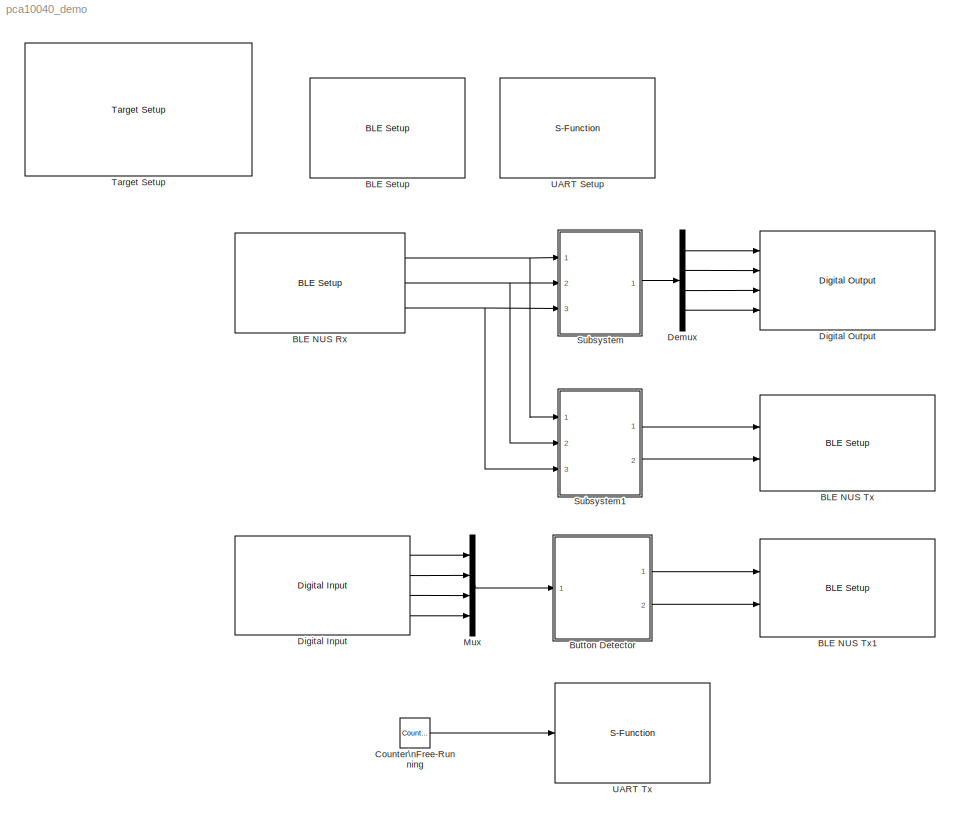
MODEL pca10040_demo
KIND model
CONFIG PreLoadFcn = waijung.modelPreload; % Required for working with Waijung Blockset. Do not remove.
BLOCK [Reference] BLE NUS Rx  REF=nrf5_ble_lib/BLE Setup
  Ports = [0, 3]
  SourceBlock = nrf5_ble_lib/BLE Setup
  SourceType = nrf5_ble
  advanceoptions = on
  asciiformat = 'led%d=%d'
  binheader = '7E 7E'
  binterminator = '03 03'
  ble_secure_dfu = off
  ble_secure_dfu_public_key = '123bd49bffb387f1de3dc8dc1fc8fcce952739d331fafeb7dd16837154ace7994a0a05af319f68e2a07478477b8db746643d6dd7f5f191193738984ffcd2b963'
  bleprofile = NUS
  blockid = BLENUSRx
  cinputportlabel = In1,In2
  compat = 0
  conf = Rx
  coutputportlabel = Out1,Out2
  devicename = 'Nordic_UART'
  enablecustomportlabel = off
  inputportlabel = {}
  inputporttype = []
  inputportwidth = []
  optionstring1 = [\"64\",\"64\",\"Non-Blocking\",\"Ascii\",\"led%d=%d\",\"0x0D, 0x0A\",\"2\",\"NUS\",\"Nordic_UART\",\"1\",\"0\"]
  optionstring2 = [\"int32_t\",\"int32_t\"]
  optionstring3 = [\"0x7E\",\"0x7E\"]
  optionstring4 = [\"0x3\",\"0x3\"]
  outputportlabel = {'READY' 'int32' 'int32'}
  outputporttype = [3 6 6]
  outputportwidth = []
  packetmode = Ascii
  portpinstr = 0
  porttype_double = 0
  porttype_int16 = 0
  porttype_int32 = 0
  porttype_int8 = 0
  porttype_single = 0
  porttype_uint16 = 0
  porttype_uint32 = 2
  porttype_uint8 = 3
  rx_asciiterminator = CRLF (0x0D 0x0A - \"<path>")
  rxbuffersize = 64
  sampletime = -1
  storagename = <empty>
  transfer = Non-Blocking
  tx_asciiterminator = None
  txbuffersize = 64
BLOCK [Reference] BLE NUS Tx  REF=nrf5_ble_lib/BLE Setup
  Ports = [2]
  SourceBlock = nrf5_ble_lib/BLE Setup
  SourceType = nrf5_ble
  advanceoptions = on
  asciiformat = 'led%d=%d'
  binheader = '7E 7E'
  binterminator = '03 03'
  ble_secure_dfu = off
  ble_secure_dfu_public_key = '123bd49bffb387f1de3dc8dc1fc8fcce952739d331fafeb7dd16837154ace7994a0a05af319f68e2a07478477b8db746643d6dd7f5f191193738984ffcd2b963'
  bleprofile = NUS
  blockid = BLENUSTx
  cinputportlabel = In1,In2
  compat = 0
  conf = Tx
  coutputportlabel = Out1,Out2
  devicename = 'Nordic_UART'
  enablecustomportlabel = off
  inputportlabel = {'Len','Data'}
  inputporttype = [5 3]
  inputportwidth = [1 -1]
  optionstring1 = [\"64\",\"64\",\"Blocking\",\"Raw Buffer\",\"led%d=%d\",\"\",\"\",\"NUS\",\"Nordic_UART\",\"1\",\"0\"]
  optionstring2 = [\"int32_t\",\"int32_t\"]
  optionstring3 = [\"0x7E\",\"0x7E\"]
  optionstring4 = [\"0x3\",\"0x3\"]
  outputportlabel = {}
  outputporttype = []
  outputportwidth = []
  packetmode = Raw Buffer
  portpinstr = 0
  porttype_double = 0
  porttype_int16 = 0
  porttype_int32 = 0
  porttype_int8 = 0
  porttype_single = 0
  porttype_uint16 = 0
  porttype_uint32 = 2
  porttype_uint8 = 3
  rx_asciiterminator = CRLF (0x0D 0x0A - \"<path>")
  rxbuffersize = 64
  sampletime = -1
  storagename = <empty>
  transfer = Blocking
  tx_asciiterminator = None
  txbuffersize = 64
BLOCK [Reference] BLE NUS Tx1  REF=nrf5_ble_lib/BLE Setup
  Ports = [2]
  SourceBlock = nrf5_ble_lib/BLE Setup
  SourceType = nrf5_ble
  advanceoptions = on
  asciiformat = 'Btn:%u,%u,%u,%u'
  binheader = '7E 7E'
  binterminator = '03 03'
  ble_secure_dfu = off
  ble_secure_dfu_public_key = '123bd49bffb387f1de3dc8dc1fc8fcce952739d331fafeb7dd16837154ace7994a0a05af319f68e2a07478477b8db746643d6dd7f5f191193738984ffcd2b963'
  bleprofile = NUS
  blockid = BLENUSTx1
  cinputportlabel = In1,In2
  compat = 0
  conf = Tx
  coutputportlabel = Out1,Out2
  devicename = 'Nordic_UART'
  enablecustomportlabel = off
  inputportlabel = {'Len','Data'}
  inputporttype = [5 3]
  inputportwidth = [1 -1]
  optionstring1 = [\"64\",\"64\",\"Blocking\",\"Raw Buffer\",\"Btn:%u,%u,%u,%u\",\"\",\"\",\"NUS\",\"Nordic_UART\",\"1\",\"0\"]
  optionstring2 = [\"uint32_t\",\"uint32_t\",\"uint32_t\",\"uint32_t\"]
  optionstring3 = [\"0x7E\",\"0x7E\"]
  optionstring4 = [\"0x3\",\"0x3\"]
  outputportlabel = {}
  outputporttype = []
  outputportwidth = []
  packetmode = Raw Buffer
  portpinstr = 0
  porttype_double = 0
  porttype_int16 = 0
  porttype_int32 = 0
  porttype_int8 = 0
  porttype_single = 0
  porttype_uint16 = 0
  porttype_uint32 = 2
  porttype_uint8 = 3
  rx_asciiterminator = CRLF (0x0D 0x0A - \"<path>")
  rxbuffersize = 64
  sampletime = -1
  storagename = <empty>
  transfer = Blocking
  tx_asciiterminator = None
  txbuffersize = 64
BLOCK [Reference] BLE Setup  REF=nrf5_ble_lib/BLE Setup
  Ports = []
  SourceBlock = nrf5_ble_lib/BLE Setup
  SourceType = nrf5_ble
  advanceoptions = on
  asciiformat = 'Value=%1.2f'
  binheader = '7E 7E'
  binterminator = '03 03'
  ble_secure_dfu = off
  ble_secure_dfu_public_key = '123bd49bffb387f1de3dc8dc1fc8fcce952739d331fafeb7dd16837154ace7994a0a05af319f68e2a07478477b8db746643d6dd7f5f191193738984ffcd2b963'
  bleprofile = NUS
  blockid = BLESetup
  cinputportlabel = In1,In2
  compat = 0
  conf = Setup
  coutputportlabel = Out1,Out2
  devicename = 'aMG_BLE Demo'
  enablecustomportlabel = off
  inputportlabel = {}
  inputporttype = []
  inputportwidth = []
  optionstring1 = [\"64\",\"64\",\"Blocking\",\"Ascii\",\"Value=%1.2f\",\"\",\"\",\"NUS\",\"aMG_BLE Demo\",\"1\",\"0\"]
  optionstring2 = [\"float\"]
  optionstring3 = [\"0x7E\",\"0x7E\"]
  optionstring4 = [\"0x3\",\"0x3\"]
  outputportlabel = {}
  outputporttype = []
  outputportwidth = []
  packetmode = Ascii
  portpinstr = 0
  porttype_double = 0
  porttype_int16 = 0
  porttype_int32 = 0
  porttype_int8 = 0
  porttype_single = 0
  porttype_uint16 = 0
  porttype_uint32 = 2
  porttype_uint8 = 3
  rx_asciiterminator = CRLF (0x0D 0x0A - \"<path>")
  rxbuffersize = 64
  sampletime = -1
  storagename = <empty>
  transfer = Blocking
  tx_asciiterminator = None
  txbuffersize = 64
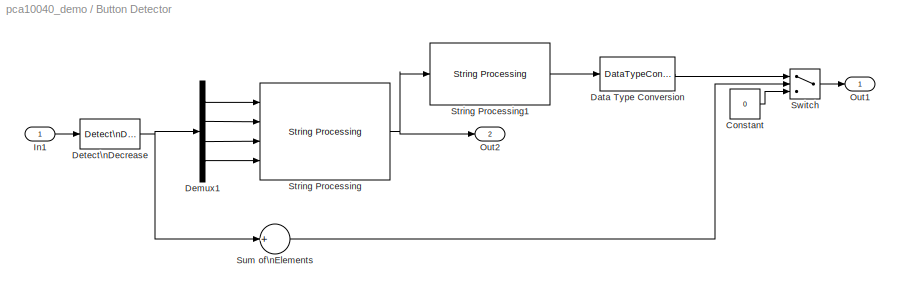
BLOCK [SubSystem] Button Detector
  FunctionWithSeparateData = off
  MaskHideContents = off
  MinAlgLoopOccurrences = off
  Opaque = off
  Ports = [1, 2]
  PropExecContextOutsideSubsystem = off
  RTWSystemCode = Auto
  RequestExecContextInheritance = off
BLOCK [Constant] Button Detector/Constant
  OutDataType = fixdt(1, 16)
  OutDataTypeMode = uint16
  OutDataTypeStr = uint16
  OutScaling = 2^0
  SampleTime = -1
  Value = 0
BLOCK [DataTypeConversion] Button Detector/Data Type Conversion
  OutDataType = fixdt(1, 16)
  OutScaling = 2^0
  RndMeth = Floor
  SaturateOnIntegerOverflow = off
BLOCK [Demux] Button Detector/Demux1
  DisplayOption = bar
  Ports = [1, 4]
BLOCK [Reference] Button Detector/Detect\nDecrease  REF=simulink/Logic and Bit\nOperations/Detect\nDecrease
  FunctionWithSeparateData = off
  Ports = [1, 1]
  RTWMemSecDataConstants = Inherit from model
  RTWMemSecDataInternal = Inherit from model
  RTWMemSecDataParameters = Inherit from model
  RTWMemSecFuncExecute = Inherit from model
  RTWMemSecFuncInitTerm = Inherit from model
  ShowPortLabels = FromPortIcon
  SourceBlock = simulink/Logic and Bit\nOperations/Detect\nDecrease
  SourceType = Detect Decrease
  SystemSampleTime = -1
  vinit = 0.0
BLOCK [Inport] Button Detector/In1
  IconDisplay = Port number
BLOCK [Outport] Button Detector/Out1
  IconDisplay = Port number
BLOCK [Outport] Button Detector/Out2
  IconDisplay = Port number
  Port = 2
BLOCK [Reference] Button Detector/String Processing  REF=waijung_string_manipulate/String Processing
  Ports = [4, 1]
  SourceBlock = waijung_string_manipulate/String Processing
  SourceType = waijung_string_processing_callback
  begindelimiter = ''
  blockid = ButtonDetectorStringProcessing
  buffersize = 64
  compat = 0
  conf = processing
  datatypestring = [\"uint32_t\",\"uint32_t\",\"uint32_t\",\"uint32_t\"]
  enablestatus = off
  enddelimiter = ''
  inputportlabel = {'%u','%u','%u','%u'}
  inputporttype = [-1 -1 -1 -1]
  inputportwidth = [1 1 1 1]
  optionstring = []
  outputportlabel = {'Output'}
  outputporttype = [3]
  outputportwidth = [64]
  portpinstr = 0
  sampletime = -1
  stringformat = 'Btn:%u,%u,%u,%u'
  stringfunction = sprintf
BLOCK [Reference] Button Detector/String Processing1  REF=waijung_string_manipulate/String Processing
  Ports = [1, 1]
  SourceBlock = waijung_string_manipulate/String Processing
  SourceType = waijung_string_processing_callback
  begindelimiter = ''
  blockid = ButtonDetectorStringProcessing1
  buffersize = 64
  compat = 0
  conf = processing
  datatypestring = []
  enablestatus = off
  enddelimiter = ''
  inputportlabel = {'Input'}
  inputporttype = [3]
  inputportwidth = [-1]
  optionstring = []
  outputportlabel = {'Length'}
  outputporttype = [7]
  outputportwidth = [1]
  portpinstr = 0
  sampletime = -1
  stringformat = 'Btn:%u,%u,%u,%u'
  stringfunction = strlen
BLOCK [Sum] Button Detector/Sum of\nElements
  InputSameDT = off
  Inputs = +
  OutDataType = fixdt(1, 16)
  OutDataTypeMode = Inherit via internal rule
  OutDataTypeStr = Inherit: Inherit via internal rule
  OutScaling = 2^-10
  Ports = [1, 1]
  SaturateOnIntegerOverflow = off
BLOCK [Switch] Button Detector/Switch
  Criteria = u2 ~= 0
  InputSameDT = off
  OutDataType = fixdt(1, 16)
  OutScaling = 2^0
  SaturateOnIntegerOverflow = off
  Threshold = 4
BLOCK [Reference] Counter\nFree-Running  REF=simulink/Sources/Counter\nFree-Running
  FunctionWithSeparateData = off
  NumBits = 32
  Ports = [0, 1]
  RTWMemSecDataConstants = Inherit from model
  RTWMemSecDataInternal = Inherit from model
  RTWMemSecDataParameters = Inherit from model
  RTWMemSecFuncExecute = Inherit from model
  RTWMemSecFuncInitTerm = Inherit from model
  ShowPortLabels = FromPortIcon
  SourceBlock = simulink/Sources/Counter\nFree-Running
  SourceType = Counter Free-Running
  SystemSampleTime = -1
  tsamp = -1
BLOCK [Demux] Demux
  DisplayOption = bar
  Ports = [1, 4]
BLOCK [Reference] Digital Input  REF=nrf5_io_lib/Digital Input
  Ports = [0, 4]
  SourceBlock = nrf5_io_lib/Digital Input
  SourceType = nrf5_digital_io
  blockid = DigitalInput
  cinputportlabel = In1,In2
  compat = 0
  conf = input
  coutputportlabel = Out1,Out2
  drivemode = High
  enablecustomportlabel = off
  inputpintype = Pull Up
  inputportlabel = {}
  inputporttype = []
  inputportwidth = []
  optionstring = [\"0\",\"High\",\"PULLUP\",\"H0D1\",\"dummy\",\"dummy\",\"dummy\",\"dummy\",\"dummy\",\"dummy\",\"off\",\"off\",\"off\",\"off\",\"off\",\"off\",\"off\",\"off\",\"off\",\"off\",\"off\",\"off\",\"off\",\"on\",\"on\",\"on\",\"on\",\"off\",\"off\",\"off\",\"off\",\"off\",\"off\",\"off\",\"off\",\"off\",\"off\",\"off\",\"off\",\"off\",\"off\",\"off\"]
  outputmode = uint8
  outputpintype = Open Drain
  outputportlabel = {'P0.13','P0.14','P0.15','P0.16'}
  outputporttype = [3,3,3,3]
  outputportwidth = []
  port = 0
  portpinstr = off
  sampletime = -1
  usepin0 = off
  usepin1 = off
  usepin10 = off
  usepin11 = off
  usepin12 = off
  usepin13 = on
  usepin14 = on
  usepin15 = on
  usepin16 = on
  usepin17 = off
  usepin18 = off
  usepin19 = off
  usepin2 = off
  usepin20 = off
  usepin21 = off
  usepin22 = off
  usepin23 = off
  usepin24 = off
  usepin25 = off
  usepin26 = off
  usepin27 = off
  usepin28 = off
  usepin29 = off
  usepin3 = off
  usepin30 = off
  usepin31 = off
  usepin4 = off
  usepin5 = off
  usepin6 = off
  usepin7 = off
  usepin8 = off
  usepin9 = off
BLOCK [Reference] Digital Output  REF=nrf5_io_lib/Digital Output
  Ports = [4]
  SourceBlock = nrf5_io_lib/Digital Output
  SourceType = nrf5_digital_io
  blockid = DigitalOutput
  cinputportlabel = In1,In2
  compat = 0
  conf = output
  coutputportlabel = Out1,Out2
  drivemode = High
  enablecustomportlabel = off
  inputpintype = None
  inputportlabel = {'P0.17','P0.18','P0.19','P0.20'}
  inputporttype = [-1,-1,-1,-1]
  inputportwidth = []
  optionstring = [\"0\",\"High\",\"NOPULL\",\"H0H1\",\"dummy\",\"dummy\",\"dummy\",\"dummy\",\"dummy\",\"dummy\",\"off\",\"off\",\"off\",\"off\",\"off\",\"off\",\"off\",\"off\",\"off\",\"off\",\"off\",\"off\",\"off\",\"off\",\"off\",\"off\",\"off\",\"on\",\"on\",\"on\",\"on\",\"off\",\"off\",\"off\",\"off\",\"off\",\"off\",\"off\",\"off\",\"off\",\"off\",\"off\"]
  outputmode = uint8
  outputpintype = Push Pull
  outputportlabel = {}
  outputporttype = []
  outputportwidth = []
  port = 0
  portpinstr = off
  sampletime = -1
  usepin0 = off
  usepin1 = off
  usepin10 = off
  usepin11 = off
  usepin12 = off
  usepin13 = off
  usepin14 = off
  usepin15 = off
  usepin16 = off
  usepin17 = on
  usepin18 = on
  usepin19 = on
  usepin2 = off
  usepin20 = on
  usepin21 = off
  usepin22 = off
  usepin23 = off
  usepin24 = off
  usepin25 = off
  usepin26 = off
  usepin27 = off
  usepin28 = off
  usepin29 = off
  usepin3 = off
  usepin30 = off
  usepin31 = off
  usepin4 = off
  usepin5 = off
  usepin6 = off
  usepin7 = off
  usepin8 = off
  usepin9 = off
BLOCK [Mux] Mux
  DisplayOption = bar
  Ports = [4, 1]
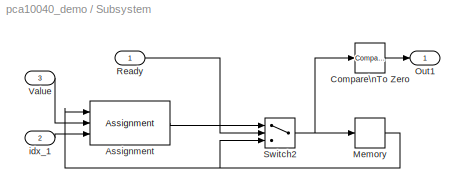
BLOCK [SubSystem] Subsystem
  FunctionWithSeparateData = off
  MaskHideContents = off
  MinAlgLoopOccurrences = off
  Opaque = off
  Ports = [3, 1]
  PropExecContextOutsideSubsystem = off
  RTWSystemCode = Auto
  RequestExecContextInheritance = off
BLOCK [Assignment] Subsystem/Assignment
  IndexOptions = Index vector (port)
  Indices = 1
  OutputSizes = 1
  Ports = [3, 1]
BLOCK [Reference] Subsystem/Compare\nTo Zero  REF=simulink/Logic and Bit\nOperations/Compare\nTo Zero
  FunctionWithSeparateData = off
  LogicOutDataTypeMode = uint8
  Ports = [1, 1]
  RTWMemSecDataConstants = Inherit from model
  RTWMemSecDataInternal = Inherit from model
  RTWMemSecDataParameters = Inherit from model
  RTWMemSecFuncExecute = Inherit from model
  RTWMemSecFuncInitTerm = Inherit from model
  ShowPortLabels = FromPortIcon
  SourceBlock = simulink/Logic and Bit\nOperations/Compare\nTo Zero
  SourceType = Compare To Zero
  SystemSampleTime = -1
  ZeroCross = off
  relop = ==
BLOCK [Memory] Subsystem/Memory
  InheritSampleTime = on
  LinearizeAsDelay = on
  LinearizeMemory = on
  X0 = [0 0 0 0]
BLOCK [Outport] Subsystem/Out1
  IconDisplay = Port number
BLOCK [Inport] Subsystem/Ready
  IconDisplay = Port number
BLOCK [Switch] Subsystem/Switch2
  Criteria = u2 ~= 0
  InputSameDT = off
  OutDataType = fixdt(1, 16)
  OutScaling = 2^0
  SaturateOnIntegerOverflow = off
BLOCK [Inport] Subsystem/Value
  IconDisplay = Port number
  Port = 3
BLOCK [Inport] Subsystem/idx_1
  IconDisplay = Port number
  Port = 2
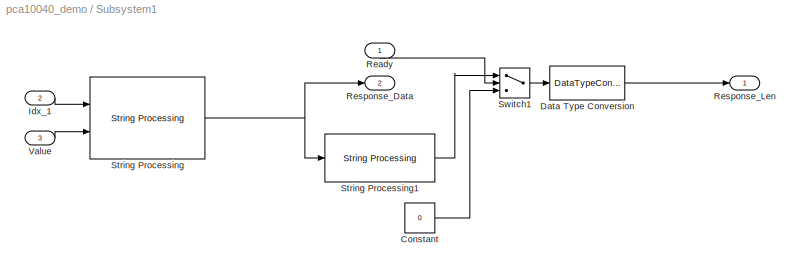
BLOCK [SubSystem] Subsystem1
  FunctionWithSeparateData = off
  MaskHideContents = off
  MinAlgLoopOccurrences = off
  Opaque = off
  Ports = [3, 2]
  PropExecContextOutsideSubsystem = off
  RTWSystemCode = Auto
  RequestExecContextInheritance = off
BLOCK [Constant] Subsystem1/Constant
  OutDataType = fixdt(1, 16)
  OutDataTypeMode = uint32
  OutDataTypeStr = uint32
  OutScaling = 2^0
  SampleTime = -1
  Value = 0
BLOCK [DataTypeConversion] Subsystem1/Data Type Conversion
  OutDataType = fixdt(1, 16)
  OutScaling = 2^0
  RndMeth = Floor
  SaturateOnIntegerOverflow = off
BLOCK [Inport] Subsystem1/Idx_1
  IconDisplay = Port number
  Port = 2
BLOCK [Inport] Subsystem1/Ready
  IconDisplay = Port number
BLOCK [Outport] Subsystem1/Response_Data
  IconDisplay = Port number
  Port = 2
BLOCK [Outport] Subsystem1/Response_Len
  IconDisplay = Port number
BLOCK [Reference] Subsystem1/String Processing  REF=waijung_string_manipulate/String Processing
  Ports = [2, 1]
  SourceBlock = waijung_string_manipulate/String Processing
  SourceType = waijung_string_processing_callback
  begindelimiter = ''
  blockid = Subsystem1StringProcessing
  buffersize = 64
  compat = 0
  conf = processing
  datatypestring = [\"int32_t\",\"int32_t\"]
  enablestatus = off
  enddelimiter = ''
  inputportlabel = {'%d','%d'}
  inputporttype = [-1 -1]
  inputportwidth = [1 1]
  optionstring = []
  outputportlabel = {'Output'}
  outputporttype = [3]
  outputportwidth = [64]
  portpinstr = 0
  sampletime = -1
  stringformat = 'OK,led%d=%d'
  stringfunction = sprintf
BLOCK [Reference] Subsystem1/String Processing1  REF=waijung_string_manipulate/String Processing
  Ports = [1, 1]
  SourceBlock = waijung_string_manipulate/String Processing
  SourceType = waijung_string_processing_callback
  begindelimiter = ''
  blockid = Subsystem1StringProcessing1
  buffersize = 64
  compat = 0
  conf = processing
  datatypestring = []
  enablestatus = off
  enddelimiter = ''
  inputportlabel = {'Input'}
  inputporttype = [3]
  inputportwidth = [-1]
  optionstring = []
  outputportlabel = {'Length'}
  outputporttype = [7]
  outputportwidth = [1]
  portpinstr = 0
  sampletime = -1
  stringformat = 'OK,led%d=%d'
  stringfunction = strlen
BLOCK [Switch] Subsystem1/Switch1
  Criteria = u2 ~= 0
  InputSameDT = off
  OutDataType = fixdt(1, 16)
  OutScaling = 2^0
  SaturateOnIntegerOverflow = off
BLOCK [Inport] Subsystem1/Value
  IconDisplay = Port number
  Port = 3
BLOCK [Reference] Target Setup  REF=nrf5_device_config_lib/Target Setup
  Ports = []
  Priority = 100
  SourceBlock = nrf5_device_config_lib/Target Setup
  SourceType = nrf5_target_setup
  assemblercontrolstr = -O3 -g3 -mcpu=cortex-m4 -mthumb -mabi=aapcs -mfloat-abi=hard -mfpu=fpv4-sp-d16
  ble_secure_dfu = off
  ble_secure_dfu_public_key = '123bd49bffb387f1de3dc8dc1fc8fcce952739d331fafeb7dd16837154ace7994a0a05af319f68e2a07478477b8db746643d6dd7f5f191193738984ffcd2b963'
  blockid = TargetSetup
  clockconfig = None
  compiler = GNU ARM
  compilercontrolstr = -O3 -g3 -mcpu=cortex-m4 -mthumb -mabi=aapcs -Wall -mfloat-abi=hard -mfpu=fpv4-sp-d16 -ffunction-sections -fdata-sections -fno-strict-aliasing -fno-builtin -fshort-enums
  editctrlstr = on
  enableautocompiledownload = on
  execprofile = None
  family = nrf52
  flashlength = 256k
  flashorigin = 0x26000
  fullchiperase = off
  global_define = CONFIG_GPIO_AS_PINRESET,FLOAT_ABI_HARD,NRF52,NRF52832_XXAA,NRF52_PAN_74,S132,SOFTDEVICE_PRESENT,SWI_DISABLE0,NRF_SD_BLE_API_VERSION=6
  hclk = 168000000
  heapsize = 0x00
  hseval = 8000000
  lastprofileruart = 3
  linkercontrolstr = -O3 -g3 -mthumb -mabi=aapcs -mcpu=cortex-m4 -mfloat-abi=hard -mfpu=fpv4-sp-d16 -Wl,--gc-sections --specs=nano.specs
  lowpower = on
  manualsetsampletime = on
  mcu = nRF52832QFAA (S132-v6)
  optionstring = [\"s132\",\"on\"]
  previous_compiler = GNU ARM
  profilerbaud = 500000
  profilerinitstr = 0.01,168000000,1680000,500000,0
  profilertxpin = D8
  profileruart = 3
  programmerinterface = nrfjprog
  ramlength = 51k
  ramorigin = 0x200032C8
  runafterdownload = on
  sampletime = 0.1
  showmemoryconfiguration = on
  softdevice = S132
  stacksize = 0x1000
  system_nrf5_c_path = <path>
  systickreloadvalue = 10
  useextram = off
BLOCK [S-Function] UART Setup
  EnableBusSupport = off
  FunctionName = nrf5_uart
  MaskCallbackString = nrf5_uart_callback('conf');||||||||nrf5_uart_callback('flowcontrol');|||nrf5_uart_callback('advanceoptions');|||nrf5_uart_callback('transfer');|nrf5_uart_callback('packetmode');|nrf5_uart_callback('binheader');|nrf5_uart_callback('binterminator');|nrf5_uart_callback('updateport');|nrf5_uart_callback('updateport');|nrf5_uart_callback('updateport');|nrf5_uart_callback('updateport');|nrf5_uart_callba...<+281ch>
  MaskDescription = UART Setup block.\nBaud rate:\n - Valid value is 1200 to 1000000.
  MaskDisplay = text(0.5, 0.5, '[UART0_Setup]\\nBaud: 115200\\nTx/Rx buffer: 64/64\\nTx/Rx pin: P0.6/P0.8','ver','middle','hor','center');
  MaskEnableString = on,off,on,off,off,off,on,on,on,on,on,on,on,on,on,on,on,on,on,on,on,on,on,on,on,on,on,on,on,on,on,on,on,on,on,off,on,on,on,on,on,on,on,on,on,on,on
  MaskHelp = web(fullfile(waijungdocroot,'nrf5_uart_setup.htm'), '-browser')
  MaskIconFrame = on
  MaskIconOpaque = on
  MaskIconRotate = none
  MaskIconUnits = normalized
  MaskInitialization = nrf5_uart_callback('init');
  MaskPortRotate = default
  MaskPromptString = Configuration|UART Module|Baud rate (bps)|Data bits|Parity|Stop bit|Tx Pin|Rx Pin|Hardware flow control|HW Flow control, CTS Pin|HW Flow control, RTS Pin|Advance options|Rx buffer size (bytes)|Tx buffer size (bytes)|Transfer|Packet mode|Binary header (example: '7E 7E')|Binary terminator (example: '03 03')|Number of data port, type DOUBLE|Number of data port, type SINGLE|Number of data port, type I...<+639ch>
  MaskSelfModifiable = on
  MaskStyleString = popup(Setup|Tx|Rx),popup(0),edit,popup(8),popup(None|Odd|Even),popup(0.5|1|1.5|2),popup(Not used|P0.0|P0.1|P0.2|P0.3|P0.4|P0.5|P0.6|P0.7|P0.8|P0.9|P0.10|P0.11|P0.12|P0.13|P0.14|P0.15|P0.16|P0.17|P0.18|P0.19|P0.20|P0.21|P0.22|P0.23|P0.24|P0.25|P0.26|P0.27|P0.28|P0.29|P0.30|P0.31),popup(Not used|P0.0|P0.1|P0.2|P0.3|P0.4|P0.5|P0.6|P0.7|P0.8|P0.9|P0.10|P0.11|P0.12|P0.13|P0.14|P0.15|P0.16|P0.17|P0.18|P...<+931ch>
  MaskTabNameString = ,,,,,,,,,,,,,,,,,,,,,,,,,,,,,,,,,,,,,,,,,,,,,,
  MaskToolTipString = on,on,on,on,on,on,on,on,on,on,on,on,on,on,on,on,on,on,on,on,on,on,on,on,on,on,on,on,on,on,on,on,on,on,on,on,on,on,on,on,on,on,on,on,on,on,on
  MaskTunableValueString = off,off,off,off,off,off,off,off,off,off,off,off,off,off,off,off,off,off,off,off,off,off,off,off,off,off,off,off,off,off,off,off,off,off,off,off,off,off,off,off,off,off,off,off,off,off,off
  MaskType = nrf5_uart
  MaskValueString = Setup|0|115200|8|None|1|P0.6|P0.8|None|P0.4|P0.2|on|64|64|Blocking|Binary|'7E 7E'|'03 03'|0|0|0|0|0|0|0|2|'Value=%1.2f'|CR (0x0D - \"\\r\")|CR (0x0D - \"\\r\")|<empty>|0|-1|off|In1,In2|Out1,Out2|UARTSetup|[]|[]|{}|[]|[]|{}|0|[\"0\",\"115200\",\"6\",\"8\",\"None\",\"4\",\"2\",\"64\",\"64\",\"Blocking\",\"Binary\",\"\",\"0\",\"\",\"0\",\"Value=%1.2f\",\"\",\"\",\"\"]|[\"float\"]|[\"0x7E\",\"0x7E\"]|...<+17ch>
  MaskVarAliasString = ,,,,,,,,,,,,,,,,,,,,,,,,,,,,,,,,,,,,,,,,,,,,,,
  MaskVariables = conf=&1;uartmodule=&2;baudrate=&3;databits=&4;parity=&5;stopbit=&6;txpin=&7;rxpin=&8;flowcontrol=&9;ctspin=&10;rtspin=&11;advanceoptions=&12;rxbuffersize=&13;txbuffersize=&14;transfer=&15;packetmode=&16;binheader=&17;binterminator=&18;porttype_double=&19;porttype_single=&20;porttype_int8=&21;porttype_uint8=&22;porttype_int16=&23;porttype_uint16=&24;porttype_int32=&25;porttype_uint32=&26;asciiforma...<+375ch>
  MaskVisibilityString = off,off,on,on,on,on,on,on,on,off,off,on,on,on,off,off,off,off,off,off,off,off,off,off,off,off,off,off,off,off,off,off,off,off,off,off,off,off,off,off,off,off,off,off,off,off,off
  Parameters = conf,inputporttype,inputportwidth,outputporttype,outputportwidth,optionstring1,optionstring2,optionstring3,optionstring4,sampletime,blockid
  Ports = []
BLOCK [S-Function] UART Tx
  EnableBusSupport = off
  FunctionName = nrf5_uart
  MaskCallbackString = nrf5_uart_callback('conf');||||||||nrf5_uart_callback('flowcontrol');|||nrf5_uart_callback('advanceoptions');|||nrf5_uart_callback('transfer');|nrf5_uart_callback('packetmode');||nrf5_uart_callback('binheader');|nrf5_uart_callback('binterminator');|nrf5_uart_callback('updateport');|nrf5_uart_callback('updateport');|nrf5_uart_callback('updateport');|nrf5_uart_callback('updateport');|nrf5_uart_callb...<+282ch>
  MaskDescription = UART Tx block.\nFor transmit data via UART communication.
  MaskDisplay = text(0.95, 0.5, '[UART0_Tx]\\nPacket: Ascii\\nTransfer: Blocking\\nTs (sec): 0.1','ver','middle','hor','right'); port_label('input', 1,'uint32');
  MaskEnableString = on,off,on,off,off,off,on,on,on,on,on,on,on,on,off,on,on,on,on,on,on,on,on,on,on,on,on,on,on,on,on,on,on,on,on,on,off,on,on,on,on,on,on,on,on,on,on,on
  MaskHelp = web(fullfile(waijungdocroot,'nrf5_uart_tx.htm'), '-browser')
  MaskIconFrame = on
  MaskIconOpaque = on
  MaskIconRotate = none
  MaskIconUnits = normalized
  MaskInitialization = nrf5_uart_callback('init');
  MaskPortRotate = default
  MaskPromptString = Configuration|UART Module|Baud rate (bps)|Data bits|Parity|Stop bit|Tx Pin|Rx Pin|Hardware flow control|HW Flow control, CTS Pin|HW Flow control, RTS Pin|Advance options|Rx buffer size (bytes)|Tx buffer size (bytes)|Transfer|Packet mode|Buffer size|Binary header (example: '7E 7E')|Binary terminator (example: '03 03')|Number of data port, type DOUBLE|Number of data port, type SINGLE|Number of data ...<+651ch>
  MaskSelfModifiable = on
  MaskStyleString = popup(Setup|Tx|Rx),popup(0),edit,popup(8),popup(None|Odd|Even),popup(0.5|1|1.5|2),popup(Not used|P0.0|P0.1|P0.2|P0.3|P0.4|P0.5|P0.6|P0.7|P0.8|P0.9|P0.10|P0.11|P0.12|P0.13|P0.14|P0.15|P0.16|P0.17|P0.18|P0.19|P0.20|P0.21|P0.22|P0.23|P0.24|P0.25|P0.26|P0.27|P0.28|P0.29|P0.30|P0.31),popup(Not used|P0.0|P0.1|P0.2|P0.3|P0.4|P0.5|P0.6|P0.7|P0.8|P0.9|P0.10|P0.11|P0.12|P0.13|P0.14|P0.15|P0.16|P0.17|P0.18|P...<+972ch>
  MaskTabNameString = ,,,,,,,,,,,,,,,,,,,,,,,,,,,,,,,,,,,,,,,,,,,,,,,
  MaskToolTipString = on,on,on,on,on,on,on,on,on,on,on,on,on,on,on,on,on,on,on,on,on,on,on,on,on,on,on,on,on,on,on,on,on,on,on,on,on,on,on,on,on,on,on,on,on,on,on,on
  MaskTunableValueString = off,off,off,off,off,off,off,off,off,off,off,off,off,off,off,off,off,off,off,off,off,off,off,off,off,off,off,off,off,off,off,off,off,off,off,off,off,off,off,off,off,off,off,off,off,off,off,off
  MaskType = nrf5_uart
  MaskValueString = Tx|0|115200|8|None|1|P0.2|P0.3|None|P0.4|P0.2|on|64|64|Blocking|Ascii|32|'7E 7E'|'03 03'|0|0|0|0|0|0|0|2|'Running=%u'|CR (0x0D - \"\\r\")|CRLF (0x0D 0x0A - \"<path>")|<empty>|0|0.1|off|In1,In2|Out1,Out2|UARTTx|[-1]|[]|{'uint32'}|[]|[]|{}|0|[\"0\",\"115200\",\"2\",\"3\",\"None\",\"4\",\"2\",\"64\",\"64\",\"Blocking\",\"Ascii\",\"\",\"0\",\"\",\"0\",\"Running=%u\",\"0x0D, 0x0A\",\"2\",\"\"]|[\"uint...<+45ch>
  MaskVarAliasString = ,,,,,,,,,,,,,,,,,,,,,,,,,,,,,,,,,,,,,,,,,,,,,,,
  MaskVariables = conf=&1;uartmodule=&2;baudrate=&3;databits=&4;parity=&5;stopbit=&6;txpin=&7;rxpin=&8;flowcontrol=&9;ctspin=&10;rtspin=&11;advanceoptions=&12;rxbuffersize=&13;txbuffersize=&14;transfer=&15;packetmode=&16;buffersize=&17;binheader=&18;binterminator=&19;porttype_double=&20;porttype_single=&21;porttype_int8=&22;porttype_uint8=&23;porttype_int16=&24;porttype_uint16=&25;porttype_int32=&26;porttype_uint32...<+390ch>
  MaskVisibilityString = off,off,off,off,off,off,off,off,off,off,off,off,off,off,on,on,on,off,off,off,off,off,off,off,off,off,off,on,off,on,off,off,on,on,off,off,off,off,off,off,off,off,off,off,off,off,off,off
  Parameters = conf,inputporttype,inputportwidth,outputporttype,outputportwidth,optionstring1,optionstring2,optionstring3,optionstring4,sampletime,blockid
  Ports = [1]
NET BLE NUS Rx:1 -> Subsystem1:1, Subsystem:1
NET BLE NUS Rx:2 -> Subsystem1:2, Subsystem:2
NET BLE NUS Rx:3 -> Subsystem1:3, Subsystem:3
LINE Button Detector/Constant:1 -> Button Detector/Switch:3
LINE Button Detector/Data Type Conversion:1 -> Button Detector/Switch:1
LINE Button Detector/Demux1:1 -> Button Detector/String Processing:1
LINE Button Detector/Demux1:2 -> Button Detector/String Processing:2
LINE Button Detector/Demux1:3 -> Button Detector/String Processing:3
LINE Button Detector/Demux1:4 -> Button Detector/String Processing:4
NET Button Detector/Detect\nDecrease:1 -> Button Detector/Demux1:1, Button Detector/Sum of\nElements:1
LINE Button Detector/In1:1 -> Button Detector/Detect\nDecrease:1
LINE Button Detector/String Processing1:1 -> Button Detector/Data Type Conversion:1
NET Button Detector/String Processing:1 -> Button Detector/Out2:1, Button Detector/String Processing1:1
LINE Button Detector/Sum of\nElements:1 -> Button Detector/Switch:2
LINE Button Detector/Switch:1 -> Button Detector/Out1:1
LINE Button Detector:1 -> BLE NUS Tx1:1
LINE Button Detector:2 -> BLE NUS Tx1:2
LINE Counter\nFree-Running:1 -> UART Tx:1
LINE Demux:1 -> Digital Output:1
LINE Demux:2 -> Digital Output:2
LINE Demux:3 -> Digital Output:3
LINE Demux:4 -> Digital Output:4
LINE Digital Input:1 -> Mux:1
LINE Digital Input:2 -> Mux:2
LINE Digital Input:3 -> Mux:3
LINE Digital Input:4 -> Mux:4
LINE Mux:1 -> Button Detector:1
LINE Subsystem/Assignment:1 -> Subsystem/Switch2:1
LINE Subsystem/Compare\nTo Zero:1 -> Subsystem/Out1:1
NET Subsystem/Memory:1 -> Subsystem/Assignment:1, Subsystem/Switch2:3
LINE Subsystem/Ready:1 -> Subsystem/Switch2:2
NET Subsystem/Switch2:1 -> Subsystem/Compare\nTo Zero:1, Subsystem/Memory:1
LINE Subsystem/Value:1 -> Subsystem/Assignment:2
LINE Subsystem/idx_1:1 -> Subsystem/Assignment:3
LINE Subsystem1/Constant:1 -> Subsystem1/Switch1:3
LINE Subsystem1/Data Type Conversion:1 -> Subsystem1/Response_Len:1
LINE Subsystem1/Idx_1:1 -> Subsystem1/String Processing:1
LINE Subsystem1/Ready:1 -> Subsystem1/Switch1:2
LINE Subsystem1/String Processing1:1 -> Subsystem1/Switch1:1
NET Subsystem1/String Processing:1 -> Subsystem1/Response_Data:1, Subsystem1/String Processing1:1
LINE Subsystem1/Switch1:1 -> Subsystem1/Data Type Conversion:1
LINE Subsystem1/Value:1 -> Subsystem1/String Processing:2
LINE Subsystem1:1 -> BLE NUS Tx:1
LINE Subsystem1:2 -> BLE NUS Tx:2
LINE Subsystem:1 -> Demux:1
note: NET lines group one-source signal fan-out (src -> all destinations, sorted); 1:1 wires keep LINE
note: 6 file-system paths scrubbed to <path> (not preserved elsewhere — flat text is the only slx artifact)
